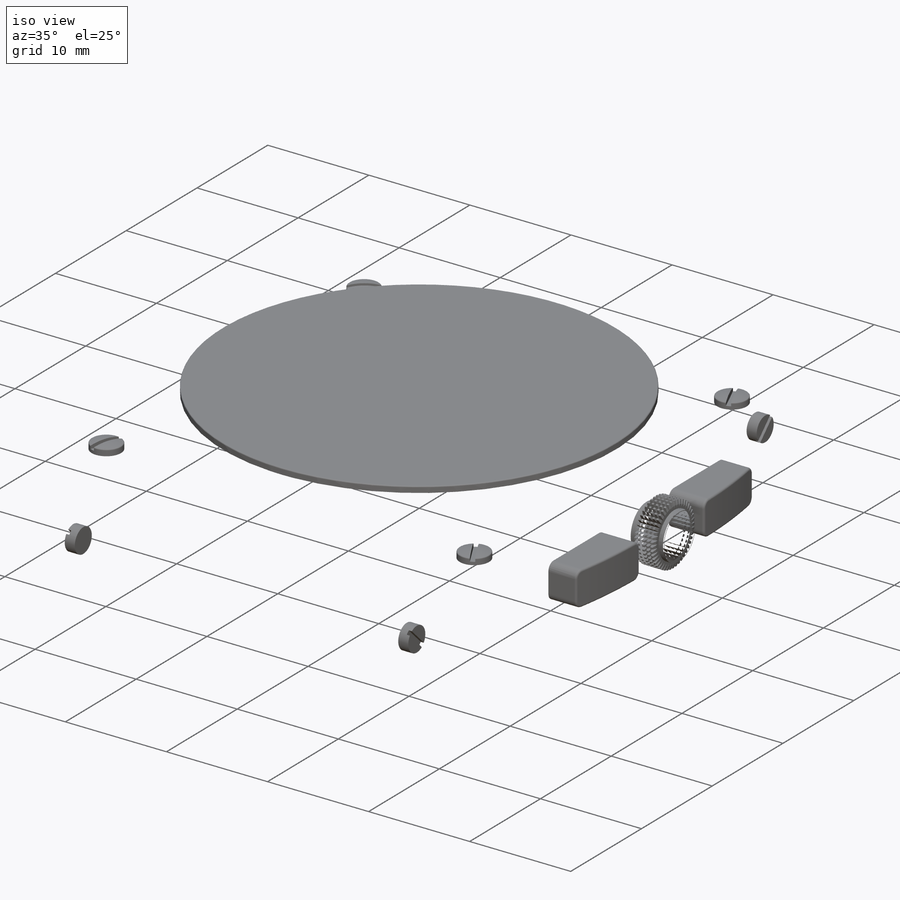
[diagram: iso view]
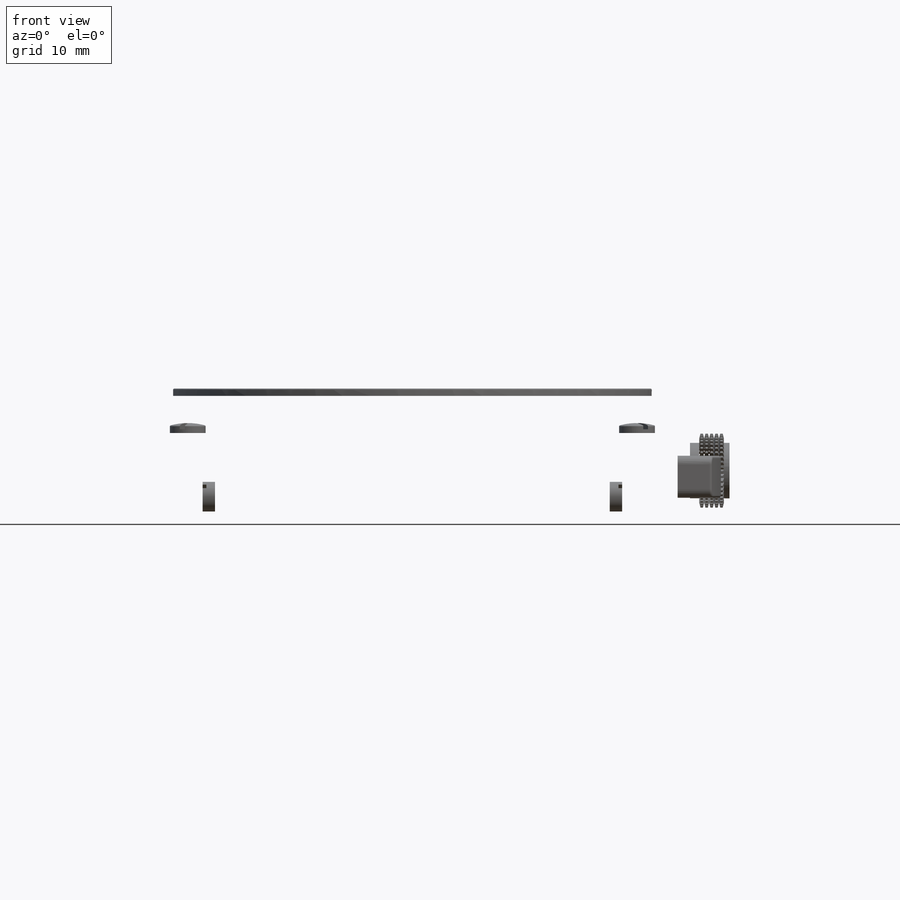
[diagram: front view]
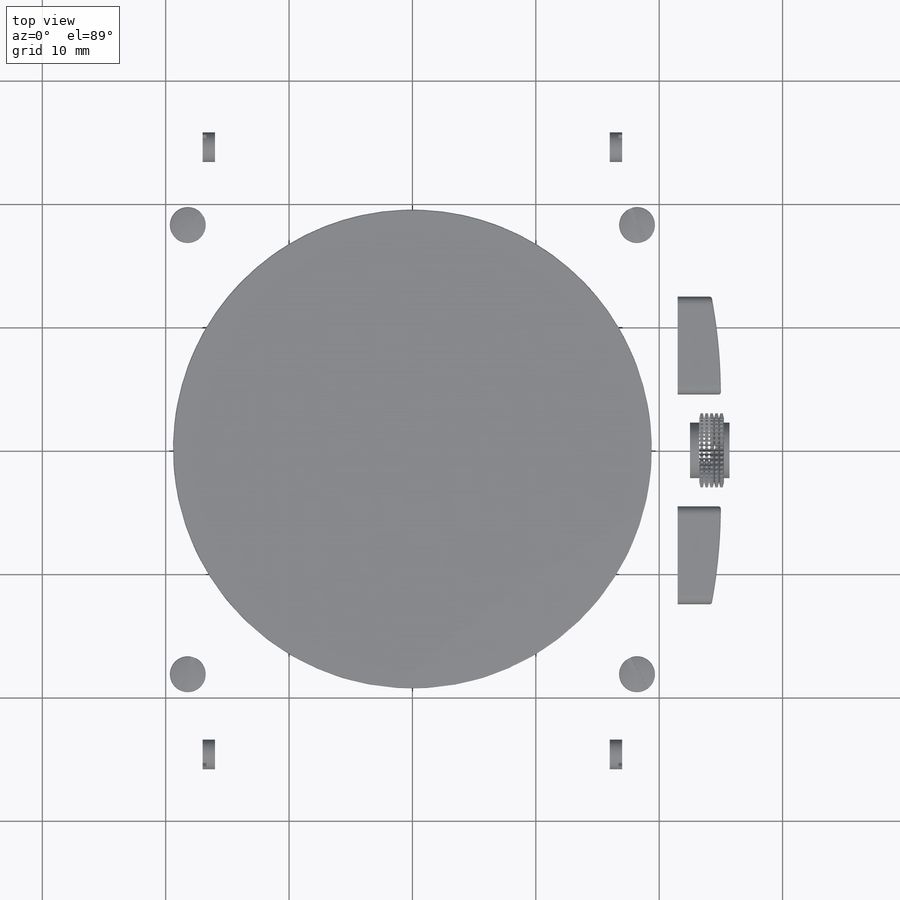
[diagram: top view]
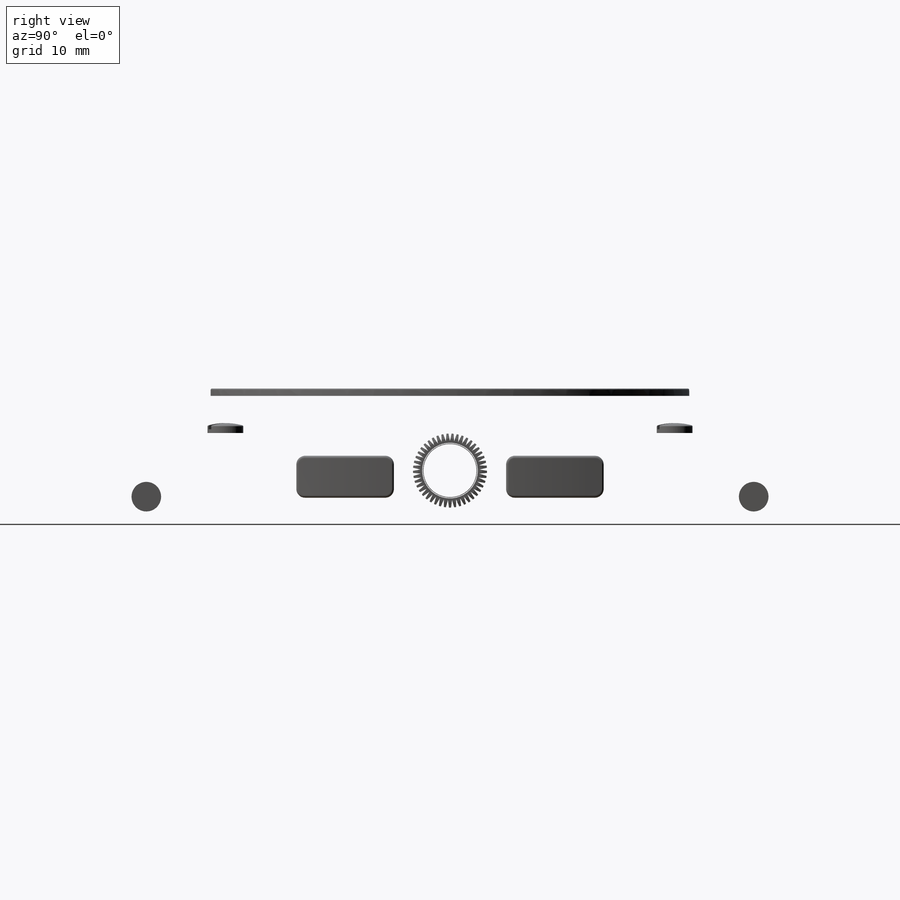
[diagram: right view]
SOLIDWORKS PART (.sldprt)
format: sldprt  version: not decoded by parser v0  size: 3,622,912 bytes
history: native  units: mm
features: sketch x27, cut_extrude x13, fillet x12, extrude x11, mirror x6, pattern_circular x4, move_body x4, chamfer x2, cut_revolve x2, material x1, dome x1, plane x1, pattern_linear x1 (+12 scaffold rows collapsed; 1 parser-record rows omitted)
feature tree (98):
  scaffold x12  (default folders/planes/origin — collapsed)
  material  "Material <not specified>"
  sketch  "Sketch1"  dims[D2=5.0mm D1=45.0mm]
  extrude  "Boss-Extrude1"  Depth=8mm
  chamfer  "Chamfer1"  Distance=1mm Angle=45deg
  sketch  "Sketch2"  dims[D1=0.1mm D2=0.1mm]
  cut_extrude  "Cut-Extrude1"  Depth=0.1mm
  sketch  "Sketch4"  dims[D1=0.0mm]
  extrude  "Boss-Extrude3"  Depth=0.05mm
  sketch  "Sketch3"  dims[D1=45.5mm]
  extrude  "Boss-Extrude2"  Depth=3mm
  chamfer  "Chamfer2"  Distance=0.75mm Angle=45deg
  sketch  "Sketch5"  dims[D1=38.0mm]
  cut_extrude  "Cut-Extrude2"  Depth=2.5mm
  sketch  "Sketch6"  dims[D1=0.5mm]
  cut_extrude  "Cut-Extrude3"  Depth=0.5mm
  sketch  "Sketch7"  dims[D1=0.1mm]
  extrude  "Boss-Extrude4"  Depth=0.1mm
  fillet  "Fillet1"  Radius=0.1mm
  sketch  "Sketch9"  dims[D1=0.3mm D2=0.3mm]
  cut_revolve  "Cut-Revolve1"  Angle=360deg
  sketch  "Sketch10"
  cut_extrude  "Cut-Extrude4"  [1 undecoded]
  pattern_circular  "CirPattern1"  Count=4 Angle=360deg
  sketch  "Sketch11"  dims[D2=3.0mm D1=1.0mm]
  cut_extrude  "Cut-Extrude5"  Depth=0.5mm
  sketch  "Sketch12"  dims[D1=0.05mm]
  extrude  "Boss-Extrude5"  Depth=0.6mm
  dome  "Dome1"
  fillet  "Fillet2"  Radius=0.1mm
  sketch  "Sketch13"
  cut_extrude  "Cut-Extrude6"  Depth=0.2mm
  move_body  "Body-Move/Copy1"
  fillet  "Fillet3"  Radius=0.05mm
  pattern_circular  "CirPattern2"  Count=4 Angle=360deg
  pattern_circular  "CirPattern3"  Count=4 Angle=360deg
  move_body  "Body-Move/Copy2"
  move_body  "Body-Move/Copy3"
  move_body  "Body-Move/Copy4"
  parser-record x1  (decoder bookkeeping rows leaked as tree rows — omitted from the tree; the rows remain in map.json)
  sketch  "Sketch14"  dims[D1=4.5mm D2=4.5mm]
  extrude  "Boss-Extrude6"  Depth=3.25mm
  sketch  "Sketch15"  dims[D1=6.0mm]
  extrude  "Boss-Extrude7"  Depth=2mm
  sketch  "Sketch16"  dims[D1=0.6mm D2=0.25mm]
  cut_extrude  "Cut-Extrude7"  [1 undecoded]
  pattern_circular  "CirPattern4"  Count=45 Angle=8deg
  plane  "Plane1"
  sketch  "Sketch17"  dims[D1=0.2mm D2=0.4mm D3=2.0mm D4=0.4mm D5=0.1mm]
  cut_revolve  "Cut-Revolve2"  Angle=360deg
  pattern_linear  "LPattern1"  Count1=5 Count2=2 Spacing1=0.4mm Spacing2=0.4mm
  sketch  "Sketch18"  dims[c1.D1=0.1mm c2.D1=0.15mm c2.D2=0.15mm]
  cut_extrude  "Cut-Extrude8"  Depth=0.05mm
  sketch  "Sketch19"  dims[D1=0.75mm D2=8.0mm D3=3.5mm D4=10.0mm D5=14.0mm]
  cut_extrude  "Cut-Extrude9"  Depth=1mm
  fillet  "Fillet4"  Radius=0.05mm
  sketch  "Sketch20"  dims[D1=0.05mm]
  extrude  "Boss-Extrude8"  Depth=11mm
  sketch  "Sketch21"  dims[D1=2.5mm D2=1.75mm]
  cut_extrude  "Cut-Extrude10"  [1 undecoded]
  fillet  "Fillet5"  Radius=0.2mm
  mirror  "Mirror1"
  mirror  "Mirror6"
  sketch  "Sketch22"  dims[D1=34.0mm D2=23.5mm D3=4.5mm]
  extrude  "Boss-Extrude9"  [1 undecoded]
  sketch  "Sketch23"
  cut_extrude  "Cut-Extrude11"  [1 undecoded]
  sketch  "Sketch24"  dims[D1=1.0mm]
  extrude  "Boss-Extrude10"  [1 undecoded]
  sketch  "Sketch25"  dims[D1=2.5mm]
  cut_extrude  "Cut-Extrude12"  Depth=1mm
  mirror  "Mirror9"
  mirror  "Mirror5"
  sketch  "Sketch26"  dims[D1=0.05mm]
  extrude  "Boss-Extrude11"  Depth=1mm
  sketch  "Sketch27"
  cut_extrude  "Cut-Extrude13"  Depth=0.3mm
  mirror  "Mirror10"
  mirror  "Mirror11"
  fillet  "Fillet7"  Radius=0.3mm
  fillet  "Fillet8"  Radius=0.1mm
  fillet  "Fillet9"  Radius=0.2mm
  fillet  "Fillet11"  Radius=0.05mm
  fillet  "Fillet12"  Radius=0.02mm
  fillet  "Fillet13"  Radius=0.05mm
  fillet  "Fillet14"  Radius=0.05mm
  sketch  "Sketch29"  dims[D1=0.5mm]
decode coverage: 62 of 83 modeling features carry decoded parameters
note: 6 parameter values undecoded
summary: no parameter record found for 6 features
note: suppression state not decoded; provenance and decode notes live in map.json
